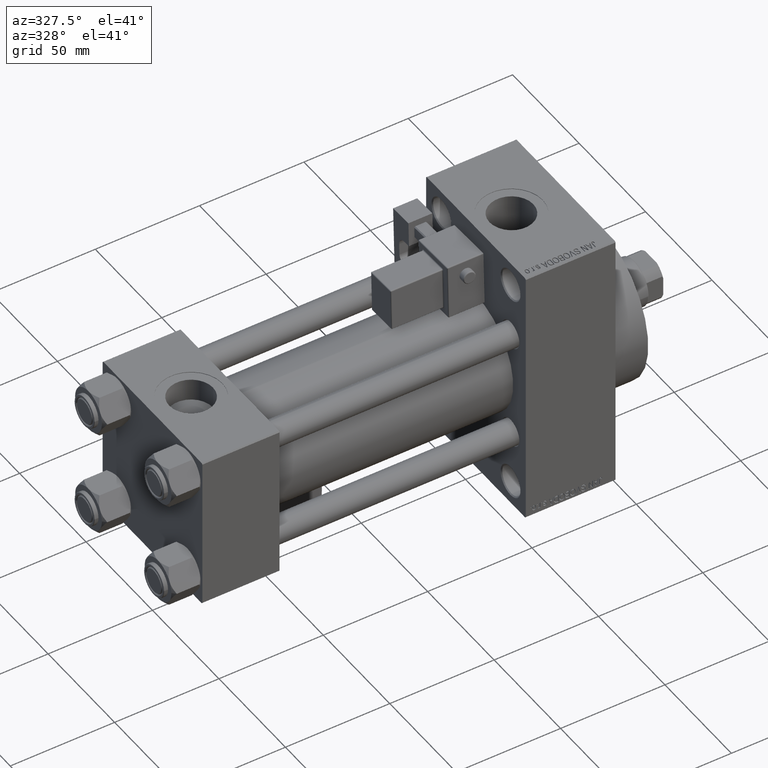
[diagram: clean part render]
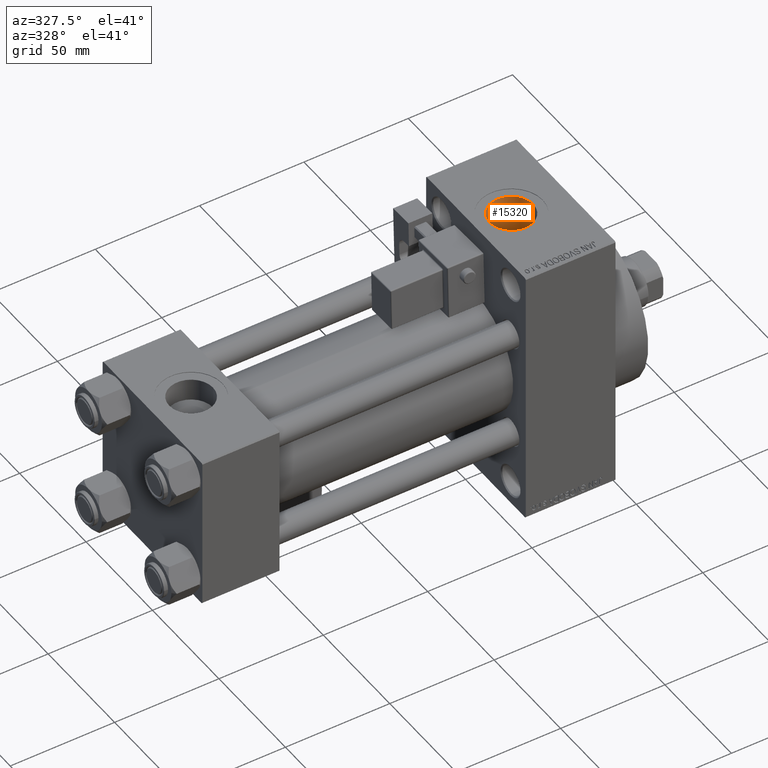
[diagram: same view with one face highlighted and labeled with its STEP entity id]
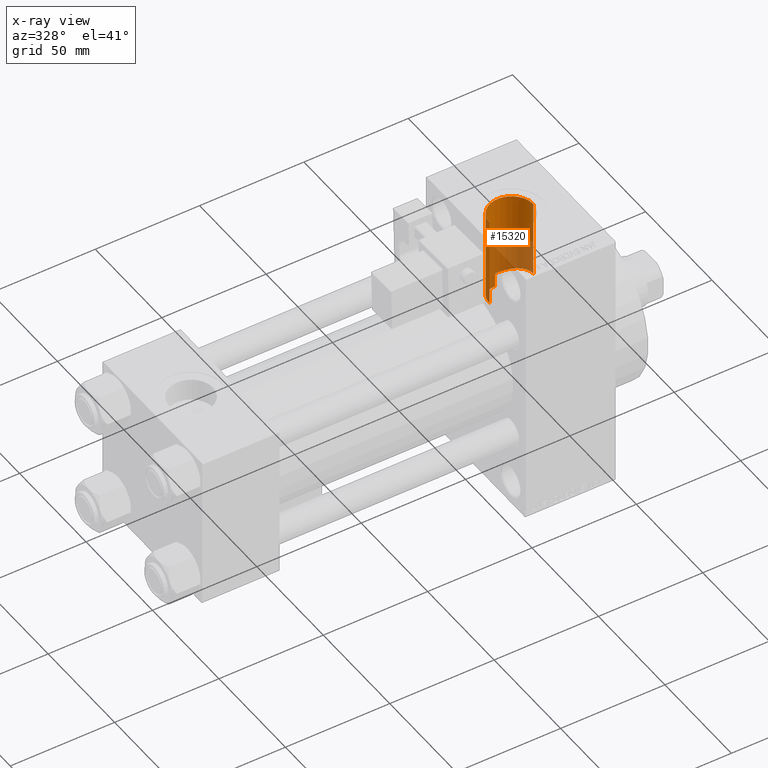
[diagram: x-ray of the same camera — body ghosted, the highlighted face saturated]
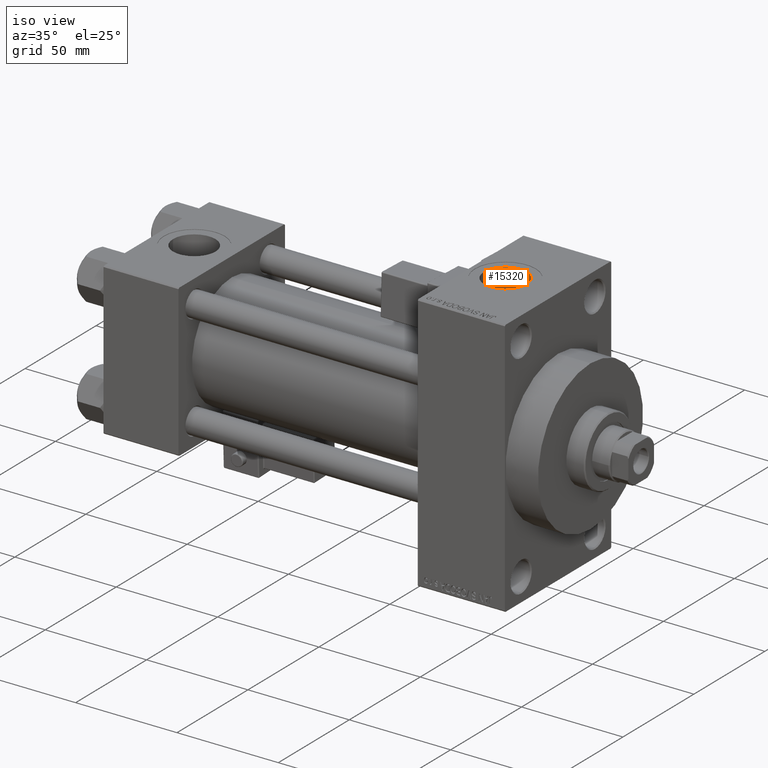
[diagram: same view with one face highlighted and labeled with its STEP entity id]
A machine part, auxiliary view. The second image highlights one B-rep face of the part: STEP entity #15320.
The next image is the same camera in x-ray: the body ghosted, the highlighted face saturated — about 42% of this face is hidden behind the body in this view.
A second angle (iso view) of the same face is appended — the face is thin or edge-on in the first view.
In plain terms, the highlighted cylindrical surface (edge-blend (fillet) strip) has radius 10.48 mm, axis along (0, 0, -1).
Its self-contained STEP definition (entity closure, byte-faithful):
#242 = CARTESIAN_POINT ( 'NONE',  ( 163.7748447540610073, 6.501949221870913398, 19.44336272688398282 ) ) ;
#2137 = CARTESIAN_POINT ( 'NONE',  ( 161.5200000000000102, -1.184237892933500047E-14, 63.79999999999996874 ) ) ;
#2402 = LINE ( 'NONE', #13424, #22291 ) ;
#2476 = CARTESIAN_POINT ( 'NONE',  ( 181.2405592406191772, 4.999168989607007951, 26.03318073817899858 ) ) ;
#2724 = CARTESIAN_POINT ( 'NONE',  ( 182.4800000000000182, 0.3734547879239682455, 26.50000000000001776 ) ) ;
#2976 = CARTESIAN_POINT ( 'NONE',  ( 180.0047687462550812, 6.803400717438798928, 25.61891449644601337 ) ) ;
#3046 = EDGE_CURVE ( 'NONE', #24878, #38055, #43171, .T. ) ;
#3208 = CARTESIAN_POINT ( 'NONE',  ( 178.4137155183432810, 8.320227012065158689, 25.16506772452922647 ) ) ;
#4577 = CYLINDRICAL_SURFACE ( 'NONE', #47501, 10.47999999999998977 ) ;
#5321 = VERTEX_POINT ( 'NONE', #2137 ) ;
#5782 = EDGE_CURVE ( 'NONE', #31560, #48490, #21455, .T. ) ;
#6239 = CARTESIAN_POINT ( 'NONE',  ( 181.8350634734961204, 3.638478613961682484, 26.25141056013275076 ) ) ;
#7494 = CARTESIAN_POINT ( 'NONE',  ( 161.9916734818970383, 3.173751558613254531, 20.26192827245123596 ) ) ;
#8483 = CARTESIAN_POINT ( 'NONE',  ( 169.4692022797542279, 10.17493502766898139, 17.79682229850194375 ) ) ;
#8970 = CARTESIAN_POINT ( 'NONE',  ( 170.4203714346557490, 10.36527059146238727, 17.68652548756301002 ) ) ;
#9116 = CARTESIAN_POINT ( 'NONE',  ( 170.7400000000000375, 10.40398000767011943, 17.66372554134604300 ) ) ;
#9868 = ORIENTED_EDGE ( 'NONE', *, *, #31561, .F. ) ;
#10408 = ORIENTED_EDGE ( 'NONE', *, *, #44558, .F. ) ;
#12124 = CARTESIAN_POINT ( 'NONE',  ( 170.7400000000000375, 10.40398000767011943, 86.79999999999995453 ) ) ;
#12230 = CARTESIAN_POINT ( 'NONE',  ( 168.2549261276042216, 9.808449044963696295, 18.00254357143011319 ) ) ;
#12937 = DIRECTION ( 'NONE',  ( 0.000000000000000000, 0.000000000000000000, -1.000000000000000000 ) ) ;
#12993 = EDGE_CURVE ( 'NONE', #5321, #31560, #20861, .T. ) ;
#13424 = CARTESIAN_POINT ( 'NONE',  ( 182.4799999999999613, -1.055894908382857656E-14, 86.79999999999995453 ) ) ;
#14714 = CARTESIAN_POINT ( 'NONE',  ( 182.3203974186214680, 1.859062739166797762, 26.43718984002442340 ) ) ;
#15128 = EDGE_CURVE ( 'NONE', #24878, #48490, #15863, .T. ) ;
#15228 = CARTESIAN_POINT ( 'NONE',  ( 166.8412927899010754, 9.127810295380935912, 18.35647067852580605 ) ) ;
#15320 = ADVANCED_FACE ( 'NONE', ( #27289 ), #4577, .F. ) ;
#15733 = CARTESIAN_POINT ( 'NONE',  ( 165.0528299167331454, 7.871036018965717140, 18.93334913321980295 ) ) ;
#15863 = LINE ( 'NONE', #12124, #31564 ) ;
#15966 = CARTESIAN_POINT ( 'NONE',  ( 161.5808659713658244, 1.297835754585093815, 20.46869666010346123 ) ) ;
#16379 = ORIENTED_EDGE ( 'NONE', *, *, #3046, .T. ) ;
#17112 = VECTOR ( 'NONE', #17596, 1000.000000000000000 ) ;
#17460 = CARTESIAN_POINT ( 'NONE',  ( 170.7400000000000375, 10.40398000767011943, 24.37226292324946542 ) ) ;
#17596 = DIRECTION ( 'NONE',  ( 0.000000000000000000, 0.000000000000000000, -1.000000000000000000 ) ) ;
#17952 = CARTESIAN_POINT ( 'NONE',  ( 177.8214836787066986, 8.745726648652278001, 25.01826792439340963 ) ) ;
#18445 = CARTESIAN_POINT ( 'NONE',  ( 179.5039792871088196, 7.352021432312223048, 25.46477158686610665 ) ) ;
#18712 = CARTESIAN_POINT ( 'NONE',  ( 161.5200000000000102, 2.510525899703770247E-15, 20.50000000000000000 ) ) ;
#19212 = CARTESIAN_POINT ( 'NONE',  ( 161.8172526941615104, 2.560154069184299441, 20.34938652026760764 ) ) ;
#20242 = CARTESIAN_POINT ( 'NONE',  ( 172.2299651273087591, 10.50378173186090969, 24.32953270370887822 ) ) ;
#20523 = DIRECTION ( 'NONE',  ( -1.000000000000000000, 0.000000000000000000, 0.000000000000000000 ) ) ;
#20861 = LINE ( 'NONE', #32596, #17112 ) ;
#21042 = ORIENTED_EDGE ( 'NONE', *, *, #5782, .T. ) ;
#21091 = AXIS2_PLACEMENT_3D ( 'NONE', #40987, #24996, #21497 ) ;
#21138 = CARTESIAN_POINT ( 'NONE',  ( 161.5200000000000102, 2.510525899703770247E-15, 20.50000000000000000 ) ) ;
#21455 = B_SPLINE_CURVE_WITH_KNOTS ( 'NONE', 3,
 ( #18712, #22959, #15966, #19212, #7494, #26451, #49197, #31198, #22703, #45455, #34708, #242, #42198, #30713, #15733, #30964, #41694, #34206, #15228, #38722, #12230, #27454, #8483, #43190, #8970, #31449 ),
 .UNSPECIFIED., .F., .F.,
 ( 4, 2, 2, 2, 2, 2, 2, 2, 2, 2, 2, 2, 4 ),
 ( 0.03336594956818868252, 0.03529115265112764410, 0.03721635573406661263, 0.03817895727553609342, 0.03914155881700557421, 0.04010416035847505500, 0.04106676189994454274, 0.04299196498288355983, 0.04395456652435306838, 0.04491716806582257693, 0.04684237114876160096, 0.04780497269023110951, 0.04876757423170062500 ),
 .UNSPECIFIED. ) ;
#21497 = DIRECTION ( 'NONE',  ( 1.000000000000000000, 0.000000000000000000, 0.000000000000000000 ) ) ;
#21949 = CARTESIAN_POINT ( 'NONE',  ( 182.1639830582153365, 2.580729652396736018, 26.37652280659619919 ) ) ;
#22291 = VECTOR ( 'NONE', #12937, 1000.000000000000000 ) ;
#22703 = CARTESIAN_POINT ( 'NONE',  ( 162.8986382944031845, 5.205176082402793725, 19.83010537438763521 ) ) ;
#22824 = CARTESIAN_POINT ( 'NONE',  ( 170.7400000000000375, 10.40398000767011943, 24.37226292324946542 ) ) ;
#22959 = CARTESIAN_POINT ( 'NONE',  ( 161.5199999999999818, 0.6432653997690273018, 20.50000000000000355 ) ) ;
#24235 = CARTESIAN_POINT ( 'NONE',  ( 173.7090337631726129, 10.34650826617282959, 24.39684948145014332 ) ) ;
#24602 = ORIENTED_EDGE ( 'NONE', *, *, #15128, .F. ) ;
#24714 = EDGE_LOOP ( 'NONE', ( #9868, #10408, #32334, #21042, #24602, #16379 ) ) ;
#24878 = VERTEX_POINT ( 'NONE', #22824 ) ;
#24996 = DIRECTION ( 'NONE',  ( -0.000000000000000000, -0.000000000000000000, -1.000000000000000000 ) ) ;
#26451 = CARTESIAN_POINT ( 'NONE',  ( 162.3367565711945417, 4.068703859687939683, 20.09447083081811058 ) ) ;
#27289 = FACE_OUTER_BOUND ( 'NONE', #24714, .T. ) ;
#27454 = CARTESIAN_POINT ( 'NONE',  ( 169.1609584177873273, 10.09308949919718934, 17.84352421155691459 ) ) ;
#29682 = CARTESIAN_POINT ( 'NONE',  ( 182.0669445693513353, 2.936601299046109226, 26.33916201839660332 ) ) ;
#29935 = CARTESIAN_POINT ( 'NONE',  ( 182.3797757294332200, 1.493268271475381104, 26.46049876817950164 ) ) ;
#30630 = CARTESIAN_POINT ( 'NONE',  ( 182.4800000000001319, 1.369086091260426415E-14, 26.50000000000006750 ) ) ;
#30713 = CARTESIAN_POINT ( 'NONE',  ( 164.5999354725381068, 7.447256858224739595, 19.10589413119057767 ) ) ;
#30964 = CARTESIAN_POINT ( 'NONE',  ( 165.7867860278862508, 8.445286684367406593, 18.68076181990202755 ) ) ;
#31198 = CARTESIAN_POINT ( 'NONE',  ( 162.7465031261293404, 4.929846979882107405, 19.90053945554343784 ) ) ;
#31449 = CARTESIAN_POINT ( 'NONE',  ( 170.7400000000000375, 10.40398000767011943, 17.66372554134604300 ) ) ;
#31560 = VERTEX_POINT ( 'NONE', #21138 ) ;
#31561 = EDGE_CURVE ( 'NONE', #36435, #38055, #2402, .T. ) ;
#31564 = VECTOR ( 'NONE', #43082, 1000.000000000000000 ) ;
#32334 = ORIENTED_EDGE ( 'NONE', *, *, #12993, .T. ) ;
#32596 = CARTESIAN_POINT ( 'NONE',  ( 161.5200000000000102, -1.184237892933500047E-14, 86.79999999999995453 ) ) ;
#32694 = CARTESIAN_POINT ( 'NONE',  ( 171.4867779838282331, 10.49442042171645717, 24.33365591073747325 ) ) ;
#33199 = CARTESIAN_POINT ( 'NONE',  ( 182.4800000000001319, 1.369086091260426415E-14, 26.50000000000006750 ) ) ;
#33433 = CARTESIAN_POINT ( 'NONE',  ( 174.8037318579563930, 10.10473920047651042, 24.49813564323964954 ) ) ;
#33934 = CARTESIAN_POINT ( 'NONE',  ( 175.8597611319121370, 9.771269649766468390, 24.63391780956525778 ) ) ;
#34206 = CARTESIAN_POINT ( 'NONE',  ( 166.5676313420411532, 8.967626198694221173, 18.43549189657610654 ) ) ;
#34708 = CARTESIAN_POINT ( 'NONE',  ( 163.4011913467665522, 5.999084284177354398, 19.60435374003196074 ) ) ;
#35489 = CARTESIAN_POINT ( 'NONE',  ( 173.3395490093498097, 10.40067243543116504, 24.37370326712204971 ) ) ;
#36435 = VERTEX_POINT ( 'NONE', #46777 ) ;
#36705 = CARTESIAN_POINT ( 'NONE',  ( 182.4596852673074636, 0.7513843442591019439, 26.49194720587043506 ) ) ;
#38055 = VERTEX_POINT ( 'NONE', #30630 ) ;
#38722 = CARTESIAN_POINT ( 'NONE',  ( 167.6756880578672337, 9.566914324853378560, 18.13372263328944101 ) ) ;
#39048 = CARTESIAN_POINT ( 'NONE',  ( 172.0000000000000000, -1.184237892933500047E-14, 86.79999999999995453 ) ) ;
#39467 = CIRCLE ( 'NONE', #21091, 10.47999999999998977 ) ;
#39492 = CARTESIAN_POINT ( 'NONE',  ( 174.4441749543284743, 10.19789382658398047, 24.45934298840090548 ) ) ;
#40466 = CARTESIAN_POINT ( 'NONE',  ( 180.8701661937233212, 5.628741928601543876, 25.90236100434594135 ) ) ;
#40700 = CARTESIAN_POINT ( 'NONE',  ( 176.5354866893690655, 9.476643251961657910, 24.75065044043747875 ) ) ;
#40987 = CARTESIAN_POINT ( 'NONE',  ( 172.0000000000000000, -1.184237892933500047E-14, 63.79999999999996874 ) ) ;
#41694 = CARTESIAN_POINT ( 'NONE',  ( 166.0406083823525023, 8.626389767625555649, 18.59760954222975471 ) ) ;
#42198 = CARTESIAN_POINT ( 'NONE',  ( 163.9742710306878735, 6.746563713616599678, 19.35963802281104762 ) ) ;
#43024 = DIRECTION ( 'NONE',  ( 0.000000000000000000, 0.000000000000000000, -1.000000000000000000 ) ) ;
#43082 = DIRECTION ( 'NONE',  ( 0.000000000000000000, 0.000000000000000000, -1.000000000000000000 ) ) ;
#43171 = B_SPLINE_CURVE_WITH_KNOTS ( 'NONE', 3,
 ( #17460, #32694, #20242, #35489, #24235, #39492, #33433, #33934, #40700, #17952, #3208, #18445, #2976, #40466, #2476, #44460, #6239, #29682, #21949, #14714, #29935, #36705, #2724, #33199 ),
 .UNSPECIFIED., .F., .F.,
 ( 4, 2, 2, 2, 2, 2, 2, 2, 2, 2, 2, 4 ),
 ( 0.000000000000000000, 0.002226462588988848811, 0.003339693883483232234, 0.004452925177977616090, 0.006679387766966461866, 0.008905850355955308509, 0.01113231294494415428, 0.01335877553393299833, 0.01447200682842742468, 0.01558523812292184930, 0.01669846941741627219, 0.01781170071191069335 ),
 .UNSPECIFIED. ) ;
#43190 = CARTESIAN_POINT ( 'NONE',  ( 170.0991158311732931, 10.31120164165119490, 17.71821964665047844 ) ) ;
#44460 = CARTESIAN_POINT ( 'NONE',  ( 181.6992295974814340, 3.986558870987725101, 26.20065640115692673 ) ) ;
#44558 = EDGE_CURVE ( 'NONE', #5321, #36435, #39467, .T. ) ;
#45455 = CARTESIAN_POINT ( 'NONE',  ( 163.2259820339099292, 5.739795438484804890, 19.68201426512246499 ) ) ;
#46777 = CARTESIAN_POINT ( 'NONE',  ( 182.4799999999999613, -1.055894908382857656E-14, 63.79999999999996874 ) ) ;
#47501 = AXIS2_PLACEMENT_3D ( 'NONE', #39048, #43024, #20523 ) ;
#48490 = VERTEX_POINT ( 'NONE', #9116 ) ;
#49197 = CARTESIAN_POINT ( 'NONE',  ( 162.4658413712517699, 4.362386374640970566, 20.03258463067211537 ) ) ;